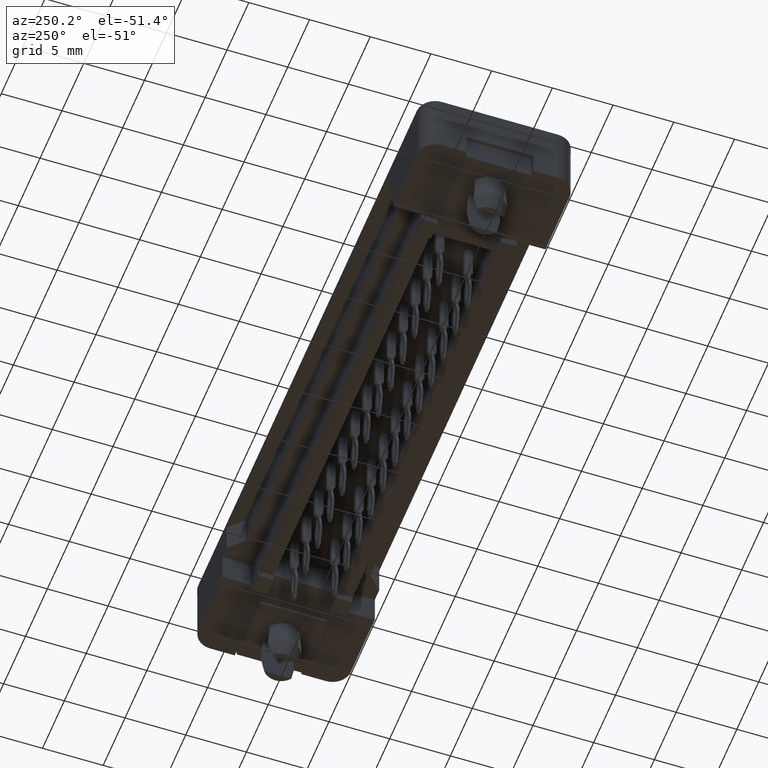
[diagram: clean part render]
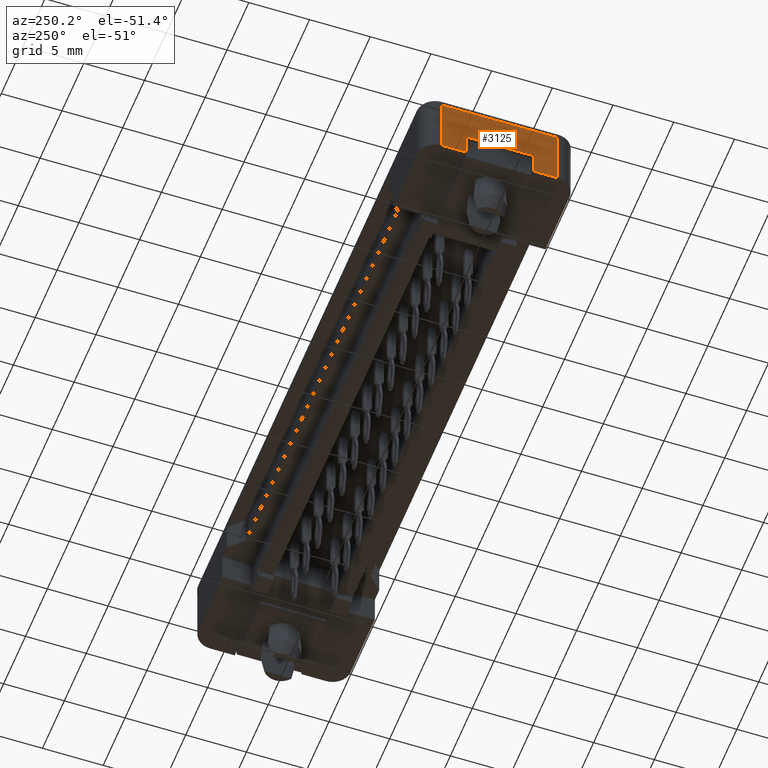
[diagram: same view with one face highlighted and labeled with its STEP entity id]
A machine part, auxiliary view. The second image highlights one B-rep face of the part: STEP entity #3125.
In plain terms, the highlighted planar face has unit normal (-1, 0, 0).
Its self-contained STEP definition (entity closure, byte-faithful):
#157 = ORIENTED_EDGE ( 'NONE', *, *, #13124, .T. ) ;
#521 = VECTOR ( 'NONE', #10009, 1000.000000000000000 ) ;
#829 = LINE ( 'NONE', #12274, #16423 ) ;
#838 = CARTESIAN_POINT ( 'NONE',  ( -2.999999999999995559, 2.750000000000001332, -3.100000000000000533 ) ) ;
#1011 = VERTEX_POINT ( 'NONE', #15723 ) ;
#1524 = EDGE_CURVE ( 'NONE', #7906, #9079, #10169, .T. ) ;
#1617 = VECTOR ( 'NONE', #1742, 1000.000000000000000 ) ;
#1679 = DIRECTION ( 'NONE',  ( 0.0000000000000000000, 0.0000000000000000000, 1.000000000000000000 ) ) ;
#1742 = DIRECTION ( 'NONE',  ( -0.0000000000000000000, -1.000000000000000000, -0.0000000000000000000 ) ) ;
#2205 = PLANE ( 'NONE',  #14692 ) ;
#2330 = ORIENTED_EDGE ( 'NONE', *, *, #1524, .F. ) ;
#2334 = CARTESIAN_POINT ( 'NONE',  ( -2.999999999999995559, 2.750000000000001332, -5.000000000000000000 ) ) ;
#3125 = ADVANCED_FACE ( 'NONE', ( #5853 ), #2205, .T. ) ;
#4226 = VERTEX_POINT ( 'NONE', #24769 ) ;
#4568 = ORIENTED_EDGE ( 'NONE', *, *, #19176, .F. ) ;
#4743 = VERTEX_POINT ( 'NONE', #16271 ) ;
#5667 = VERTEX_POINT ( 'NONE', #2334 ) ;
#5853 = FACE_OUTER_BOUND ( 'NONE', #17109, .T. ) ;
#6095 = CARTESIAN_POINT ( 'NONE',  ( -2.999999999999995559, -4.775000000000002132, -5.000000000000000000 ) ) ;
#6395 = DIRECTION ( 'NONE',  ( -0.0000000000000000000, -0.0000000000000000000, -1.000000000000000000 ) ) ;
#6537 = VECTOR ( 'NONE', #1679, 1000.000000000000000 ) ;
#7906 = VERTEX_POINT ( 'NONE', #18994 ) ;
#8530 = CARTESIAN_POINT ( 'NONE',  ( -2.999999999999995559, -2.749999999999996891, -3.100000000000000533 ) ) ;
#8991 = EDGE_CURVE ( 'NONE', #18308, #1011, #18348, .T. ) ;
#9079 = VERTEX_POINT ( 'NONE', #16710 ) ;
#9595 = VECTOR ( 'NONE', #19953, 1000.000000000000000 ) ;
#9994 = VECTOR ( 'NONE', #6395, 1000.000000000000000 ) ;
#10009 = DIRECTION ( 'NONE',  ( 0.0000000000000000000, 0.0000000000000000000, 1.000000000000000000 ) ) ;
#10169 = LINE ( 'NONE', #17952, #11851 ) ;
#10305 = ORIENTED_EDGE ( 'NONE', *, *, #8991, .F. ) ;
#10430 = DIRECTION ( 'NONE',  ( -0.0000000000000000000, -1.000000000000000000, -0.0000000000000000000 ) ) ;
#10769 = LINE ( 'NONE', #838, #9595 ) ;
#11438 = ORIENTED_EDGE ( 'NONE', *, *, #15491, .T. ) ;
#11575 = ORIENTED_EDGE ( 'NONE', *, *, #18893, .T. ) ;
#11627 = LINE ( 'NONE', #15375, #6537 ) ;
#11777 = LINE ( 'NONE', #6095, #521 ) ;
#11851 = VECTOR ( 'NONE', #10430, 1000.000000000000000 ) ;
#11898 = DIRECTION ( 'NONE',  ( -1.000000000000000000, 0.0000000000000000000, 0.0000000000000000000 ) ) ;
#12274 = CARTESIAN_POINT ( 'NONE',  ( -2.999999999999995559, -4.775000000000001243, -5.000000000000000000 ) ) ;
#12402 = ORIENTED_EDGE ( 'NONE', *, *, #12512, .T. ) ;
#12440 = LINE ( 'NONE', #8530, #9994 ) ;
#12512 = EDGE_CURVE ( 'NONE', #18308, #4743, #12440, .T. ) ;
#13124 = EDGE_CURVE ( 'NONE', #4226, #5667, #829, .T. ) ;
#13192 = CARTESIAN_POINT ( 'NONE',  ( -2.999999999999995559, -2.750000000000000444, -3.100000000000000533 ) ) ;
#14443 = ORIENTED_EDGE ( 'NONE', *, *, #24561, .F. ) ;
#14692 = AXIS2_PLACEMENT_3D ( 'NONE', #23109, #11898, #19554 ) ;
#15375 = CARTESIAN_POINT ( 'NONE',  ( -2.999999999999995559, 4.774999999999995914, -5.000000000000000000 ) ) ;
#15491 = EDGE_CURVE ( 'NONE', #4743, #16098, #20748, .T. ) ;
#15723 = CARTESIAN_POINT ( 'NONE',  ( -2.999999999999995559, 2.750000000000001332, -3.100000000000000533 ) ) ;
#16098 = VERTEX_POINT ( 'NONE', #21557 ) ;
#16271 = CARTESIAN_POINT ( 'NONE',  ( -2.999999999999995559, -2.749999999999996891, -5.000000000000000000 ) ) ;
#16423 = VECTOR ( 'NONE', #21733, 1000.000000000000000 ) ;
#16710 = CARTESIAN_POINT ( 'NONE',  ( -2.999999999999995559, -4.775000000000002132, 0.0000000000000000000 ) ) ;
#16964 = CARTESIAN_POINT ( 'NONE',  ( -2.999999999999995559, -4.775000000000001243, -5.000000000000000000 ) ) ;
#17109 = EDGE_LOOP ( 'NONE', ( #12402, #11438, #11575, #2330, #4568, #157, #14443, #10305 ) ) ;
#17952 = CARTESIAN_POINT ( 'NONE',  ( -2.999999999999995559, -4.775000000000001243, 0.0000000000000000000 ) ) ;
#18308 = VERTEX_POINT ( 'NONE', #13192 ) ;
#18348 = LINE ( 'NONE', #22642, #19417 ) ;
#18893 = EDGE_CURVE ( 'NONE', #16098, #9079, #11777, .T. ) ;
#18994 = CARTESIAN_POINT ( 'NONE',  ( -2.999999999999995559, 4.774999999999995914, 0.0000000000000000000 ) ) ;
#19176 = EDGE_CURVE ( 'NONE', #4226, #7906, #11627, .T. ) ;
#19417 = VECTOR ( 'NONE', #22526, 1000.000000000000000 ) ;
#19554 = DIRECTION ( 'NONE',  ( 0.0000000000000000000, 0.0000000000000000000, 1.000000000000000000 ) ) ;
#19953 = DIRECTION ( 'NONE',  ( -0.0000000000000000000, -0.0000000000000000000, -1.000000000000000000 ) ) ;
#20748 = LINE ( 'NONE', #16964, #1617 ) ;
#21557 = CARTESIAN_POINT ( 'NONE',  ( -2.999999999999995559, -4.775000000000002132, -5.000000000000000000 ) ) ;
#21733 = DIRECTION ( 'NONE',  ( -0.0000000000000000000, -1.000000000000000000, -0.0000000000000000000 ) ) ;
#22526 = DIRECTION ( 'NONE',  ( -0.0000000000000000000, 1.000000000000000000, -0.0000000000000000000 ) ) ;
#22642 = CARTESIAN_POINT ( 'NONE',  ( -2.999999999999995559, 2.750000000000001332, -3.100000000000000533 ) ) ;
#23109 = CARTESIAN_POINT ( 'NONE',  ( -2.999999999999995559, -4.775000000000001243, -5.000000000000000000 ) ) ;
#24561 = EDGE_CURVE ( 'NONE', #1011, #5667, #10769, .T. ) ;
#24769 = CARTESIAN_POINT ( 'NONE',  ( -2.999999999999995559, 4.774999999999995914, -5.000000000000000000 ) ) ;